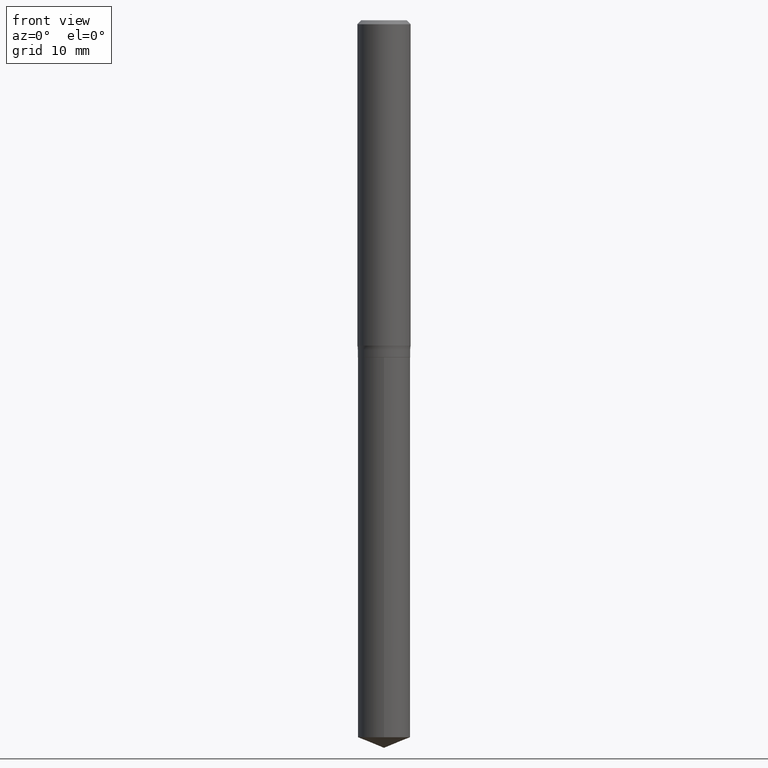
[diagram: clean part render]
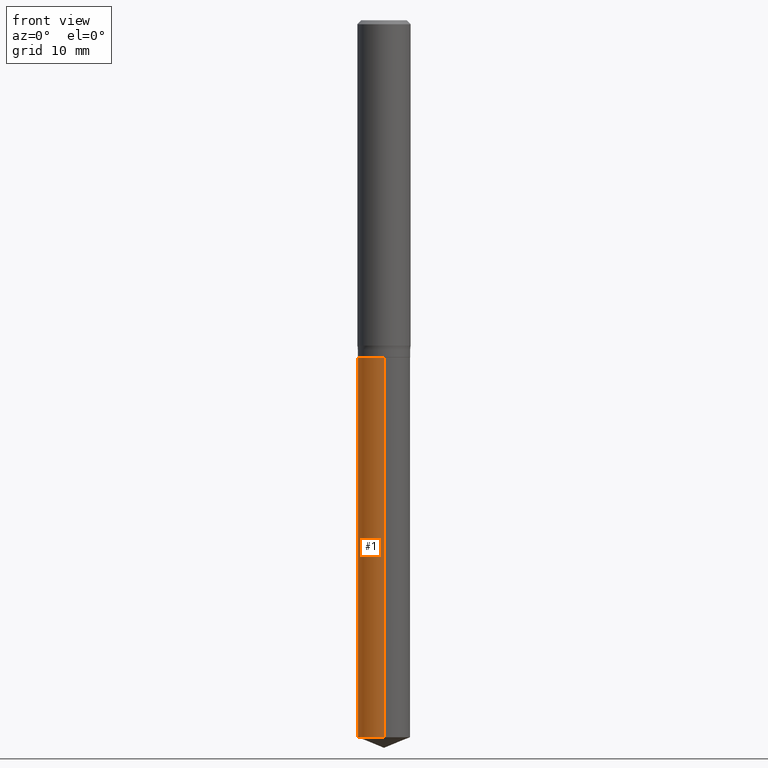
[diagram: same view with one face highlighted and labeled with its STEP entity id]
A machine part, front view. The second image highlights one B-rep face of the part: STEP entity #1.
In plain terms, the highlighted cylindrical surface (edge-blend (fillet) strip) has radius 2.9502 mm, axis along (-0, 0, 1).
Its self-contained STEP definition (entity closure, byte-faithful):
#1 = ADVANCED_FACE ( 'NONE', ( #8 ), #463, .T. ) ;
#4 = ORIENTED_EDGE ( 'NONE', *, *, #480, .T. ) ;
#8 = FACE_OUTER_BOUND ( 'NONE', #291, .T. ) ;
#17 = VERTEX_POINT ( 'NONE', #460 ) ;
#19 = VECTOR ( 'NONE', #210, 39.37007874015748143 ) ;
#36 = DIRECTION ( 'NONE',  ( -2.445463019248761215E-29, 3.491489626065407071E-15, 1.000000000000000000 ) ) ;
#63 = VERTEX_POINT ( 'NONE', #424 ) ;
#79 = ORIENTED_EDGE ( 'NONE', *, *, #269, .F. ) ;
#80 = DIRECTION ( 'NONE',  ( -6.982962677686265922E-15, -1.000000000000000000, 4.703999989090422785E-15 ) ) ;
#108 = AXIS2_PLACEMENT_3D ( 'NONE', #244, #118, #372 ) ;
#118 = DIRECTION ( 'NONE',  ( -2.445463019248761215E-29, 3.491489626065407071E-15, 1.000000000000000000 ) ) ;
#134 = CIRCLE ( 'NONE', #108, 0.1161500000000000032 ) ;
#159 = CARTESIAN_POINT ( 'NONE',  ( 3.657687693411109493E-29, -5.222208638507693246E-15, -1.495700000000000029 ) ) ;
#210 = DIRECTION ( 'NONE',  ( -2.445463019248761495E-29, 3.491489626065407071E-15, 1.000000000000000000 ) ) ;
#244 = CARTESIAN_POINT ( 'NONE',  ( 3.657687693411109493E-29, -5.222208638507693246E-15, -1.495700000000000029 ) ) ;
#250 = LINE ( 'NONE', #406, #19 ) ;
#253 = CIRCLE ( 'NONE', #467, 0.1161500000000000032 ) ;
#261 = EDGE_CURVE ( 'NONE', #399, #465, #250, .T. ) ;
#262 = CARTESIAN_POINT ( 'NONE',  ( 8.252953875854338945E-16, 0.1161499999999888871, -3.181072353869247582 ) ) ;
#269 = EDGE_CURVE ( 'NONE', #465, #17, #134, .T. ) ;
#270 = DIRECTION ( 'NONE',  ( -2.445463019248761495E-29, 3.491489626065407071E-15, 1.000000000000000000 ) ) ;
#291 = EDGE_LOOP ( 'NONE', ( #348, #4, #335, #79 ) ) ;
#309 = DIRECTION ( 'NONE',  ( -2.445463019248761215E-29, 3.491489626065407071E-15, 1.000000000000000000 ) ) ;
#335 = ORIENTED_EDGE ( 'NONE', *, *, #446, .T. ) ;
#338 = DIRECTION ( 'NONE',  ( -6.982962677686265922E-15, -1.000000000000000000, 2.351999994545211393E-15 ) ) ;
#348 = ORIENTED_EDGE ( 'NONE', *, *, #261, .F. ) ;
#366 = CARTESIAN_POINT ( 'NONE',  ( 7.779203458462590144E-29, -1.110666872809960382E-14, -3.181072353869246694 ) ) ;
#372 = DIRECTION ( 'NONE',  ( -6.982962677686265922E-15, -1.000000000000000000, 2.351999994545211393E-15 ) ) ;
#397 = VECTOR ( 'NONE', #270, 39.37007874015748143 ) ;
#399 = VERTEX_POINT ( 'NONE', #262 ) ;
#404 = LINE ( 'NONE', #427, #397 ) ;
#406 = CARTESIAN_POINT ( 'NONE',  ( 8.252953875853927751E-16, 0.1161499999999947713, -1.495700000000000474 ) ) ;
#421 = AXIS2_PLACEMENT_3D ( 'NONE', #159, #309, #338 ) ;
#424 = CARTESIAN_POINT ( 'NONE',  ( -8.110711150131820431E-16, -0.1161500000000111055, -3.181072353869246250 ) ) ;
#427 = CARTESIAN_POINT ( 'NONE',  ( -8.110711150132233597E-16, -0.1161500000000052213, -1.495699999999999807 ) ) ;
#446 = EDGE_CURVE ( 'NONE', #63, #17, #404, .T. ) ;
#460 = CARTESIAN_POINT ( 'NONE',  ( -8.110711150132233597E-16, -0.1161500000000052213, -1.495699999999999807 ) ) ;
#463 = CYLINDRICAL_SURFACE ( 'NONE', #421, 0.1161500000000000032 ) ;
#465 = VERTEX_POINT ( 'NONE', #485 ) ;
#467 = AXIS2_PLACEMENT_3D ( 'NONE', #366, #36, #80 ) ;
#480 = EDGE_CURVE ( 'NONE', #399, #63, #253, .T. ) ;
#485 = CARTESIAN_POINT ( 'NONE',  ( 8.252953875854342889E-16, 0.1161499999999947713, -1.495700000000000474 ) ) ;